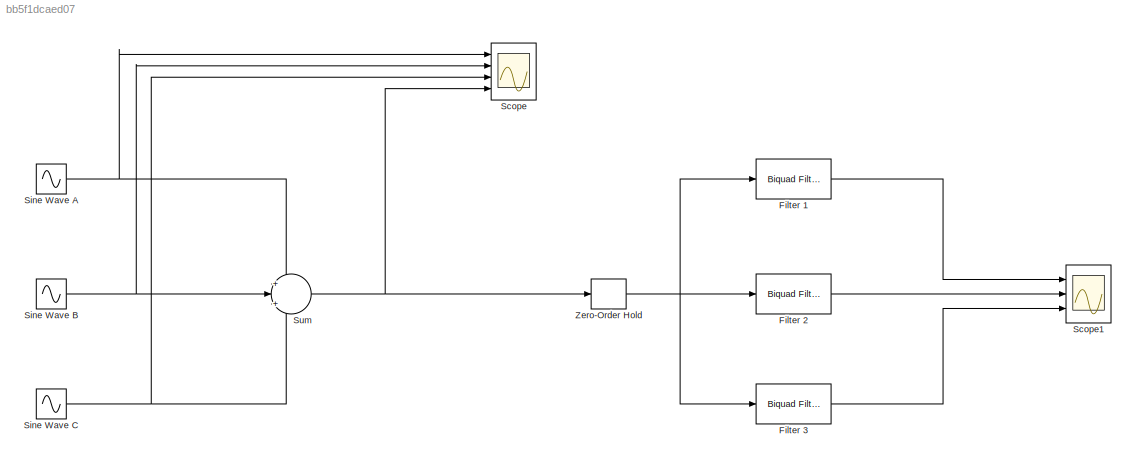
MODEL slx_bb5f1dcaed07
KIND model
BLOCK [Reference] Filter 1  REF=dsparch4/Biquad Filter
  BiQuadCoeffs = [1 -0.95283293913422362 1 1 -1.1259316670360957 0.93629487856096338;1 -0.76558794394961827 1 1 -1.1817650747096444 0.84553663777251609;1 -0.19143863320137666 1 1 -1.2869269559567975 0.68877446776273055;1 1.405522715515706 1 1 -1.3964345467436945 0.52808469942507863;1 -1.0119247183282249 1 1 -1.1103692090404258 0.98314509353382196]
  CoeffSource = Specify via dialog
  FilterSource = Specify via dialog
  IC = 0
  ICden = 0
  ICnum = 0
  IIRFiltStruct = Direct form II
  InputProcessing = Columns as channels (frame based)
  LockScale = off
  Ports = [1, 1]
  ScaleValueMode = Specify via input port (g)
  ScaleValues = [0.86159491573695868;0.81683349333787381;0.66703756727848984;0.80498393673654445;0.0080709820598665483;1]
  SourceBlock = dsparch4/Biquad Filter
  SourceType = Biquad Filter
  Tag = BlockMethodSubSystem
  UserDataPersistent = on
  a0Flag = Warning
  accumFracLength = 30
  accumMode = Same as product output
  accumWordLength = 32
  allowOverrides = on
  denAccumFracLength = 30
  denProdOutputFracLength = 30
  dfiltObjectName = dfilt.df2tsos([1 0.3 0.4],[1 0.1 0.2])
  firstCoeffFracLength = 15
  firstCoeffMode = Same word length as input
  firstCoeffWordLength = 16
  memoryFracLength = 15
  memoryMode = Same as accumulator
  memoryWordLength = 16
  multiplicandFracLength = 30
  multiplicandMode = Same as output
  multiplicandWordLength = 32
  optimizeScaleValues = on
  outputFracLength = 15
  outputMode = Same as accumulator
  outputWordLength = 16
  overflowMode = off
  prodOutputFracLength = 30
  prodOutputMode = Same as input
  prodOutputWordLength = 32
  roundingMode = Floor
  scaleValueFracLength = 14
  secondCoeffFracLength = 15
  secondCoeffMode = Same as numerator
  secondCoeffWordLength = 16
  secondMemoryFracLength = 15
  stageInputFracLength = 15
  stageInputMode = Same as input
  stageInputWordLength = 16
  stageOutputFracLength = 15
  stageOutputMode = Same as section input
  stageOutputWordLength = 16
BLOCK [Reference] Filter 2  REF=dsparch4/Biquad Filter
  BiQuadCoeffs = [1 -0.44890304834288369 1 1 -0.91933473648994379 0.96934402809904152;1 -1.2722723760091084 1 1 -0.86911636602808195 0.96890213648083989;1 -0.72233518192252255 1 1 -0.96040024520614531 0.9883966952324329;1 -1.076612114443765 1 1 -0.84380035187548752 0.98800371790827712]
  CoeffSource = Specify via dialog
  FilterSource = Specify via dialog
  IC = 0
  ICden = 0
  ICnum = 0
  IIRFiltStruct = Direct form II
  InputProcessing = Columns as channels (frame based)
  LockScale = off
  Ports = [1, 1]
  ScaleValueMode = Specify via input port (g)
  ScaleValues = [0.33285428087334418;0.33285428087334418;0.089753534972130983;0.089753534972130983;1]
  SourceBlock = dsparch4/Biquad Filter
  SourceType = Biquad Filter
  Tag = BlockMethodSubSystem
  UserDataPersistent = on
  a0Flag = Warning
  accumFracLength = 30
  accumMode = Same as product output
  accumWordLength = 32
  allowOverrides = on
  denAccumFracLength = 30
  denProdOutputFracLength = 30
  dfiltObjectName = dfilt.df2tsos([1 0.3 0.4],[1 0.1 0.2])
  firstCoeffFracLength = 15
  firstCoeffMode = Same word length as input
  firstCoeffWordLength = 16
  memoryFracLength = 15
  memoryMode = Same as accumulator
  memoryWordLength = 16
  multiplicandFracLength = 30
  multiplicandMode = Same as output
  multiplicandWordLength = 32
  optimizeScaleValues = on
  outputFracLength = 15
  outputMode = Same as accumulator
  outputWordLength = 16
  overflowMode = off
  prodOutputFracLength = 30
  prodOutputMode = Same as input
  prodOutputWordLength = 32
  roundingMode = Floor
  scaleValueFracLength = 14
  secondCoeffFracLength = 15
  secondCoeffMode = Same as numerator
  secondCoeffWordLength = 16
  secondMemoryFracLength = 15
  stageInputFracLength = 15
  stageInputMode = Same as input
  stageInputWordLength = 16
  stageOutputFracLength = 15
  stageOutputMode = Same as section input
  stageOutputWordLength = 16
BLOCK [Reference] Filter 3  REF=dsparch4/Biquad Filter
  BiQuadCoeffs = [1 -0.89491165558750152 1 1 -0.35064235646200276 0.83680040820907176;1 -1.2809003066569766 1 1 0.027827946997489039 0.58055843727616119;1 -1.8717747187761302 1 1 0.59368522473455709 0.20736715105893014;1 -0.7515791872796963 1 1 -0.49994762717968666 0.95872126483202325]
  CoeffSource = Specify via dialog
  FilterSource = Specify via dialog
  IC = 0
  ICden = 0
  ICnum = 0
  IIRFiltStruct = Direct form II
  InputProcessing = Columns as channels (frame based)
  LockScale = off
  Ports = [1, 1]
  ScaleValueMode = Specify via input port (g)
  ScaleValues = [0.99347999157066447;1.2567088326587721;2.9720385954467625;0.013185830143014443;1]
  SourceBlock = dsparch4/Biquad Filter
  SourceType = Biquad Filter
  Tag = BlockMethodSubSystem
  UserDataPersistent = on
  a0Flag = Warning
  accumFracLength = 30
  accumMode = Same as product output
  accumWordLength = 32
  allowOverrides = on
  denAccumFracLength = 30
  denProdOutputFracLength = 30
  dfiltObjectName = dfilt.df2tsos([1 0.3 0.4],[1 0.1 0.2])
  firstCoeffFracLength = 15
  firstCoeffMode = Same word length as input
  firstCoeffWordLength = 16
  memoryFracLength = 15
  memoryMode = Same as accumulator
  memoryWordLength = 16
  multiplicandFracLength = 30
  multiplicandMode = Same as output
  multiplicandWordLength = 32
  optimizeScaleValues = on
  outputFracLength = 15
  outputMode = Same as accumulator
  outputWordLength = 16
  overflowMode = off
  prodOutputFracLength = 30
  prodOutputMode = Same as input
  prodOutputWordLength = 32
  roundingMode = Floor
  scaleValueFracLength = 14
  secondCoeffFracLength = 15
  secondCoeffMode = Same as numerator
  secondCoeffWordLength = 16
  secondMemoryFracLength = 15
  stageInputFracLength = 15
  stageInputMode = Same as input
  stageInputWordLength = 16
  stageOutputFracLength = 15
  stageOutputMode = Same as section input
  stageOutputWordLength = 16
BLOCK [Scope] Scope
  DataFormat = StructureWithTime
  Floating = off
  NumInputPorts = 4
  Ports = [4]
  SampleTime = 0
  ShowLegends = off
  YMax = 5~5~5~5
  YMin = -5~-5~-5~-5
BLOCK [Scope] Scope1
  DataFormat = StructureWithTime
  Floating = off
  NumInputPorts = 3
  Ports = [3]
  SampleTime = 0
  SaveName = ScopeData1
  ShowLegends = off
  YMax = 5~5~5
  YMin = -5~-5~-5
BLOCK [Sin] Sine Wave A
  Amplitude = 2.5
  Frequency = 2*pi*1500
  Phase = pi/2
  Ports = [0, 1]
  SampleTime = 0
BLOCK [Sin] Sine Wave B
  Amplitude = 1.75
  Frequency = 1750*2*pi
  Phase = pi/4
  Ports = [0, 1]
  SampleTime = 0
BLOCK [Sin] Sine Wave C
  Amplitude = 1.25
  Frequency = 2*pi*2200
  Phase = 3*pi/4
  Ports = [0, 1]
  SampleTime = 0
BLOCK [Sum] Sum
  IconShape = round
  InputSameDT = off
  Inputs = +|+|+
  OutDataTypeStr = Inherit: Inherit via internal rule
  Ports = [3, 1]
  SaturateOnIntegerOverflow = off
BLOCK [ZeroOrderHold] Zero-Order Hold
  SampleTime = 1/10000
LINE Filter 1:1 -> Scope1:1
LINE Filter 2:1 -> Scope1:2
LINE Filter 3:1 -> Scope1:3
NET Sine Wave A:1 -> Scope:1, Sum:1
NET Sine Wave B:1 -> Scope:2, Sum:2
NET Sine Wave C:1 -> Scope:3, Sum:3
NET Sum:1 -> Scope:4, Zero-Order Hold:1
NET Zero-Order Hold:1 -> Filter 1:1, Filter 2:1, Filter 3:1
note: NET lines group one-source signal fan-out (src -> all destinations, sorted); 1:1 wires keep LINE
